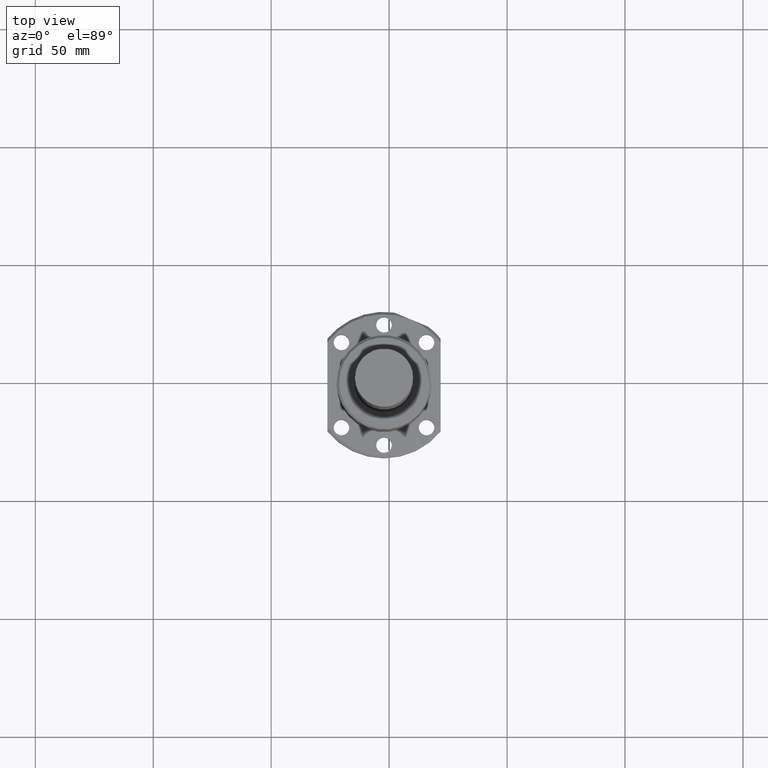
[diagram: clean part render]
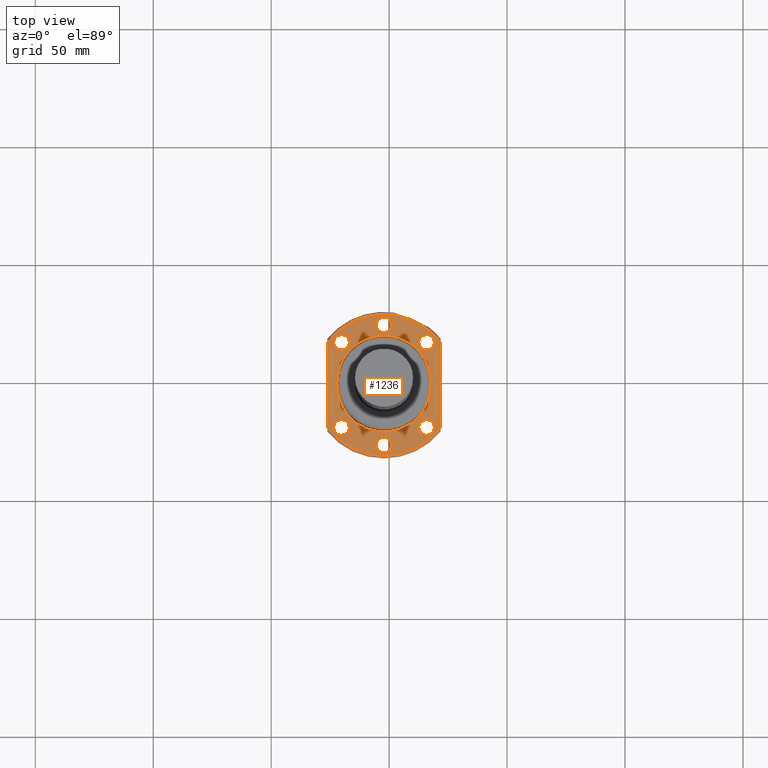
[diagram: same view with one face highlighted and labeled with its STEP entity id]
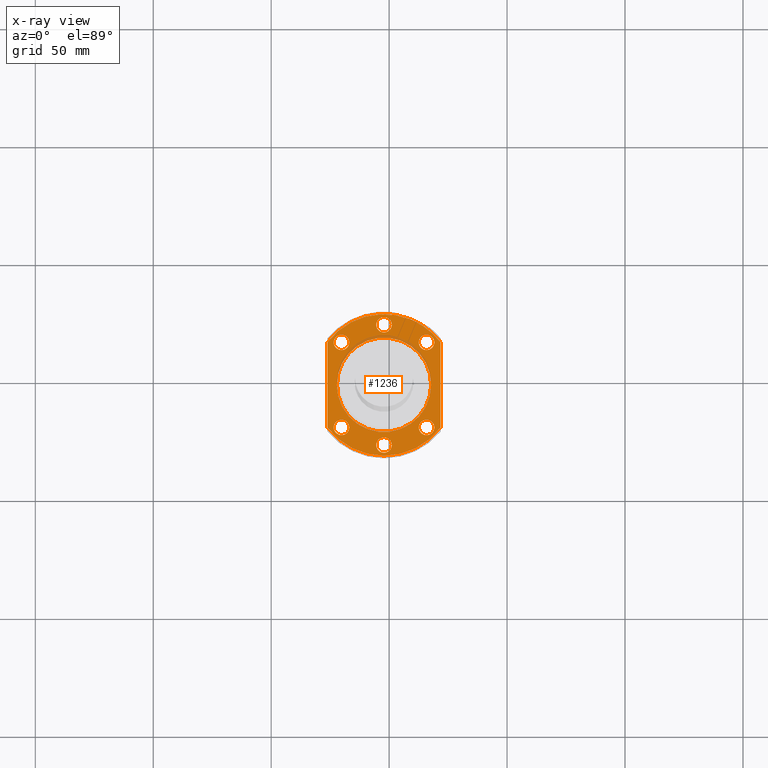
[diagram: x-ray of the same camera — body ghosted, the highlighted face saturated]
A machine part, top view. The second image highlights one B-rep face of the part: STEP entity #1236.
The next image is the same camera in x-ray: the body ghosted, the highlighted face saturated — about 4% of this face is hidden behind the body in this view.
In plain terms, the highlighted planar face has unit normal (0, 0, -1).
Its self-contained STEP definition (entity closure, byte-faithful):
#3 = EDGE_LOOP ( 'NONE', ( #971, #704 ) ) ;
#5 = DIRECTION ( 'NONE',  ( -0.0000000000000000000, 0.0000000000000000000, -1.000000000000000000 ) ) ;
#13 = EDGE_CURVE ( 'NONE', #1778, #966, #1190, .T. ) ;
#89 = AXIS2_PLACEMENT_3D ( 'NONE', #844, #840, #838 ) ;
#112 = FACE_OUTER_BOUND ( 'NONE', #1169, .T. ) ;
#116 = AXIS2_PLACEMENT_3D ( 'NONE', #518, #368, #695 ) ;
#121 = AXIS2_PLACEMENT_3D ( 'NONE', #1296, #1295, #1291 ) ;
#144 = EDGE_CURVE ( 'NONE', #391, #1743, #1106, .T. ) ;
#150 = EDGE_LOOP ( 'NONE', ( #1475, #442 ) ) ;
#152 = AXIS2_PLACEMENT_3D ( 'NONE', #1693, #1692, #1690 ) ;
#153 = FACE_BOUND ( 'NONE', #357, .T. ) ;
#200 = FACE_BOUND ( 'NONE', #542, .T. ) ;
#241 = ORIENTED_EDGE ( 'NONE', *, *, #1807, .F. ) ;
#255 = DIRECTION ( 'NONE',  ( 1.000000000000000000, 0.0000000000000000000, 0.0000000000000000000 ) ) ;
#260 = AXIS2_PLACEMENT_3D ( 'NONE', #867, #859, #853 ) ;
#279 = FACE_BOUND ( 'NONE', #793, .T. ) ;
#299 = EDGE_CURVE ( 'NONE', #1491, #596, #1075, .T. ) ;
#324 = DIRECTION ( 'NONE',  ( -0.0000000000000000000, 0.0000000000000000000, -1.000000000000000000 ) ) ;
#327 = AXIS2_PLACEMENT_3D ( 'NONE', #1160, #1156, #1154 ) ;
#340 = AXIS2_PLACEMENT_3D ( 'NONE', #1596, #5, #1070 ) ;
#354 = VECTOR ( 'NONE', #1013, 1000.000000000000000 ) ;
#357 = EDGE_LOOP ( 'NONE', ( #486, #1051 ) ) ;
#364 = FACE_BOUND ( 'NONE', #3, .T. ) ;
#368 = DIRECTION ( 'NONE',  ( -0.0000000000000000000, 0.0000000000000000000, -1.000000000000000000 ) ) ;
#380 = EDGE_CURVE ( 'NONE', #1526, #1243, #1072, .T. ) ;
#391 = VERTEX_POINT ( 'NONE', #1652 ) ;
#393 = AXIS2_PLACEMENT_3D ( 'NONE', #495, #494, #491 ) ;
#412 = EDGE_CURVE ( 'NONE', #1697, #947, #1097, .T. ) ;
#435 = FACE_BOUND ( 'NONE', #1633, .T. ) ;
#440 = VERTEX_POINT ( 'NONE', #1809 ) ;
#442 = ORIENTED_EDGE ( 'NONE', *, *, #299, .F. ) ;
#459 = CARTESIAN_POINT ( 'NONE',  ( 24.00000000000000000, 17.99999966708705300, -15.99999399974776700 ) ) ;
#465 = VERTEX_POINT ( 'NONE', #1802 ) ;
#471 = CARTESIAN_POINT ( 'NONE',  ( -21.33119279000001000, 18.03121900000000000, -15.99999400000000300 ) ) ;
#486 = ORIENTED_EDGE ( 'NONE', *, *, #380, .F. ) ;
#491 = DIRECTION ( 'NONE',  ( 1.000000000000000000, 0.0000000000000000000, 0.0000000000000000000 ) ) ;
#494 = DIRECTION ( 'NONE',  ( -0.0000000000000000000, 0.0000000000000000000, -1.000000000000000000 ) ) ;
#495 = CARTESIAN_POINT ( 'NONE',  ( -18.03120500000000300, -18.03122000000000100, -15.99999400000000300 ) ) ;
#500 = ORIENTED_EDGE ( 'NONE', *, *, #1028, .T. ) ;
#510 = FACE_BOUND ( 'NONE', #150, .T. ) ;
#518 = CARTESIAN_POINT ( 'NONE',  ( 0.0000000000000000000, 0.0000000000000000000, -15.99999399999996200 ) ) ;
#525 = CARTESIAN_POINT ( 'NONE',  ( -23.99999999999999600, 17.99999966666669600, -15.99999399999998300 ) ) ;
#526 = EDGE_CURVE ( 'NONE', #1743, #391, #995, .T. ) ;
#532 = CIRCLE ( 'NONE', #393, 3.299987790000005200 ) ;
#541 = ORIENTED_EDGE ( 'NONE', *, *, #1362, .F. ) ;
#542 = EDGE_LOOP ( 'NONE', ( #1087, #569 ) ) ;
#543 = CARTESIAN_POINT ( 'NONE',  ( -14.73121720999999900, -18.03122000000000100, -15.99999400000000300 ) ) ;
#545 = CIRCLE ( 'NONE', #893, 3.299987790000005200 ) ;
#562 = ORIENTED_EDGE ( 'NONE', *, *, #1326, .F. ) ;
#567 = CARTESIAN_POINT ( 'NONE',  ( 18.03123450000000000, -18.03122000000000100, -15.99999400000000300 ) ) ;
#569 = ORIENTED_EDGE ( 'NONE', *, *, #1511, .F. ) ;
#576 = CARTESIAN_POINT ( 'NONE',  ( 19.99999610000000100, 0.0000000000000000000, -15.99999400000000300 ) ) ;
#581 = DIRECTION ( 'NONE',  ( 1.000000000000000000, 0.0000000000000000000, 0.0000000000000000000 ) ) ;
#582 = DIRECTION ( 'NONE',  ( -0.0000000000000000000, 0.0000000000000000000, -1.000000000000000000 ) ) ;
#588 = CIRCLE ( 'NONE', #968, 3.299987789999999900 ) ;
#596 = VERTEX_POINT ( 'NONE', #1744 ) ;
#603 = FACE_BOUND ( 'NONE', #1158, .T. ) ;
#640 = DIRECTION ( 'NONE',  ( 1.000000000000000000, 0.0000000000000000000, 0.0000000000000000000 ) ) ;
#653 = EDGE_CURVE ( 'NONE', #1243, #1526, #990, .T. ) ;
#660 = EDGE_CURVE ( 'NONE', #738, #1762, #1066, .T. ) ;
#662 = CARTESIAN_POINT ( 'NONE',  ( -3.299972790000000000, 25.50000000000000400, -15.99999400000000300 ) ) ;
#672 = CIRCLE ( 'NONE', #1240, 3.299987790000000300 ) ;
#675 = CIRCLE ( 'NONE', #89, 3.299987790000005200 ) ;
#683 = CIRCLE ( 'NONE', #260, 3.300003049999999900 ) ;
#695 = DIRECTION ( 'NONE',  ( 1.000000000000000000, 0.0000000000000000000, 0.0000000000000000000 ) ) ;
#704 = ORIENTED_EDGE ( 'NONE', *, *, #1521, .F. ) ;
#723 = DIRECTION ( 'NONE',  ( 1.000000000000000000, 0.0000000000000000000, 0.0000000000000000000 ) ) ;
#726 = DIRECTION ( 'NONE',  ( -0.0000000000000000000, -0.0000000000000000000, -1.000000000000000000 ) ) ;
#736 = CARTESIAN_POINT ( 'NONE',  ( 1.499999999991091800E-005, 25.50000000000000400, -15.99999400000000300 ) ) ;
#738 = VERTEX_POINT ( 'NONE', #1675 ) ;
#773 = CARTESIAN_POINT ( 'NONE',  ( 0.0000000000000000000, 0.0000000000000000000, -15.99999400000000300 ) ) ;
#783 = DIRECTION ( 'NONE',  ( 1.000000000000000000, 0.0000000000000000000, 0.0000000000000000000 ) ) ;
#785 = DIRECTION ( 'NONE',  ( -0.0000000000000000000, 0.0000000000000000000, -1.000000000000000000 ) ) ;
#787 = CARTESIAN_POINT ( 'NONE',  ( 18.03123450000000000, 18.03121900000000000, -15.99999400000000300 ) ) ;
#793 = EDGE_LOOP ( 'NONE', ( #241, #1293 ) ) ;
#803 = VERTEX_POINT ( 'NONE', #1626 ) ;
#812 = VERTEX_POINT ( 'NONE', #1623 ) ;
#831 = AXIS2_PLACEMENT_3D ( 'NONE', #1757, #1755, #1752 ) ;
#838 = DIRECTION ( 'NONE',  ( 1.000000000000000000, 0.0000000000000000000, 0.0000000000000000000 ) ) ;
#840 = DIRECTION ( 'NONE',  ( -0.0000000000000000000, 0.0000000000000000000, -1.000000000000000000 ) ) ;
#844 = CARTESIAN_POINT ( 'NONE',  ( -18.03120500000000300, 18.03121900000000000, -15.99999400000000300 ) ) ;
#851 = CIRCLE ( 'NONE', #1696, 29.99999980000003700 ) ;
#853 = DIRECTION ( 'NONE',  ( 1.000000000000000000, 0.0000000000000000000, 0.0000000000000000000 ) ) ;
#856 = ORIENTED_EDGE ( 'NONE', *, *, #13, .T. ) ;
#859 = DIRECTION ( 'NONE',  ( -0.0000000000000000000, -0.0000000000000000000, -1.000000000000000000 ) ) ;
#867 = CARTESIAN_POINT ( 'NONE',  ( 0.0000000000000000000, -25.50000000000000400, -15.99999400000000300 ) ) ;
#876 = CARTESIAN_POINT ( 'NONE',  ( 14.73124670999999900, 18.03121900000000000, -15.99999400000000300 ) ) ;
#893 = AXIS2_PLACEMENT_3D ( 'NONE', #1589, #582, #581 ) ;
#945 = VECTOR ( 'NONE', #1036, 1000.000000000000000 ) ;
#946 = CIRCLE ( 'NONE', #1837, 29.99999980000003700 ) ;
#947 = VERTEX_POINT ( 'NONE', #1453 ) ;
#954 = CIRCLE ( 'NONE', #121, 3.300003049999999900 ) ;
#966 = VERTEX_POINT ( 'NONE', #1448 ) ;
#968 = AXIS2_PLACEMENT_3D ( 'NONE', #736, #726, #723 ) ;
#971 = ORIENTED_EDGE ( 'NONE', *, *, #1740, .F. ) ;
#990 = CIRCLE ( 'NONE', #152, 3.299987790000000300 ) ;
#995 = CIRCLE ( 'NONE', #831, 19.99999610000000100 ) ;
#1013 = DIRECTION ( 'NONE',  ( 0.0000000000000000000, 1.000000000000000000, 0.0000000000000000000 ) ) ;
#1014 = CARTESIAN_POINT ( 'NONE',  ( 24.00000000000000000, 0.0000000000000000000, -15.99999399999999900 ) ) ;
#1017 = LINE ( 'NONE', #1014, #354 ) ;
#1028 = EDGE_CURVE ( 'NONE', #966, #1586, #946, .T. ) ;
#1036 = DIRECTION ( 'NONE',  ( 0.0000000000000000000, -1.000000000000000000, 0.0000000000000000000 ) ) ;
#1038 = CARTESIAN_POINT ( 'NONE',  ( -24.00000000000000000, 0.0000000000000000000, -15.99999399999999900 ) ) ;
#1040 = LINE ( 'NONE', #1038, #945 ) ;
#1041 = ORIENTED_EDGE ( 'NONE', *, *, #1606, .F. ) ;
#1051 = ORIENTED_EDGE ( 'NONE', *, *, #653, .F. ) ;
#1058 = DIRECTION ( 'NONE',  ( -0.0000000000000000000, 0.0000000000000000000, -1.000000000000000000 ) ) ;
#1066 = CIRCLE ( 'NONE', #1509, 3.299987790000005200 ) ;
#1070 = DIRECTION ( 'NONE',  ( 1.000000000000000000, 0.0000000000000000000, 0.0000000000000000000 ) ) ;
#1072 = CIRCLE ( 'NONE', #1110, 3.299987790000000300 ) ;
#1075 = CIRCLE ( 'NONE', #340, 3.299987790000000300 ) ;
#1087 = ORIENTED_EDGE ( 'NONE', *, *, #1166, .F. ) ;
#1095 = ORIENTED_EDGE ( 'NONE', *, *, #412, .F. ) ;
#1097 = CIRCLE ( 'NONE', #1774, 3.299987789999999900 ) ;
#1104 = ORIENTED_EDGE ( 'NONE', *, *, #1207, .F. ) ;
#1106 = CIRCLE ( 'NONE', #1756, 19.99999610000000100 ) ;
#1110 = AXIS2_PLACEMENT_3D ( 'NONE', #567, #1058, #255 ) ;
#1139 = VERTEX_POINT ( 'NONE', #1459 ) ;
#1145 = CARTESIAN_POINT ( 'NONE',  ( 14.73124670999999900, -18.03122000000000100, -15.99999400000000300 ) ) ;
#1154 = DIRECTION ( 'NONE',  ( 1.000000000000000000, 0.0000000000000000000, 0.0000000000000000000 ) ) ;
#1156 = DIRECTION ( 'NONE',  ( 0.0000000000000000000, 0.0000000000000000000, 1.000000000000000000 ) ) ;
#1158 = EDGE_LOOP ( 'NONE', ( #1591, #1614 ) ) ;
#1160 = CARTESIAN_POINT ( 'NONE',  ( -24.00000000000000000, -30.35999979800000400, -15.99999399999999900 ) ) ;
#1165 = CARTESIAN_POINT ( 'NONE',  ( 21.33122228999999900, -18.03122000000000100, -15.99999400000000300 ) ) ;
#1166 = EDGE_CURVE ( 'NONE', #440, #1139, #954, .T. ) ;
#1169 = EDGE_LOOP ( 'NONE', ( #1104, #562, #856, #500, #541 ) ) ;
#1172 = PLANE ( 'NONE',  #327 ) ;
#1190 = CIRCLE ( 'NONE', #116, 29.99999980000003700 ) ;
#1207 = EDGE_CURVE ( 'NONE', #465, #812, #851, .T. ) ;
#1221 = DIRECTION ( 'NONE',  ( 1.000000000000000000, 0.0000000000000000000, 0.0000000000000000000 ) ) ;
#1222 = DIRECTION ( 'NONE',  ( 0.0000000000000000000, -0.0000000000000000000, 1.000000000000000000 ) ) ;
#1227 = CARTESIAN_POINT ( 'NONE',  ( 0.0000000000000000000, 0.0000000000000000000, -15.99999399999996200 ) ) ;
#1236 = ADVANCED_FACE ( 'NONE', ( #603, #510, #435, #364, #279, #200, #153, #112 ), #1172, .F. ) ;
#1240 = AXIS2_PLACEMENT_3D ( 'NONE', #787, #785, #783 ) ;
#1243 = VERTEX_POINT ( 'NONE', #1145 ) ;
#1291 = DIRECTION ( 'NONE',  ( 1.000000000000000000, 0.0000000000000000000, 0.0000000000000000000 ) ) ;
#1293 = ORIENTED_EDGE ( 'NONE', *, *, #660, .F. ) ;
#1295 = DIRECTION ( 'NONE',  ( -0.0000000000000000000, -0.0000000000000000000, -1.000000000000000000 ) ) ;
#1296 = CARTESIAN_POINT ( 'NONE',  ( 0.0000000000000000000, -25.50000000000000400, -15.99999400000000300 ) ) ;
#1326 = EDGE_CURVE ( 'NONE', #1778, #465, #1040, .T. ) ;
#1362 = EDGE_CURVE ( 'NONE', #812, #1586, #1017, .T. ) ;
#1392 = DIRECTION ( 'NONE',  ( 1.000000000000000000, -1.776356839400250500E-015, 0.0000000000000000000 ) ) ;
#1395 = DIRECTION ( 'NONE',  ( -0.0000000000000000000, 0.0000000000000000000, -1.000000000000000000 ) ) ;
#1397 = CARTESIAN_POINT ( 'NONE',  ( 0.0000000000000000000, 0.0000000000000000000, -15.99999399999996200 ) ) ;
#1448 = CARTESIAN_POINT ( 'NONE',  ( -11.48050294420043300, 27.71638587827104800, -15.99999389991637400 ) ) ;
#1453 = CARTESIAN_POINT ( 'NONE',  ( 3.300002789999999700, 25.50000000000000400, -15.99999400000000300 ) ) ;
#1459 = CARTESIAN_POINT ( 'NONE',  ( -3.300003049999999900, -25.50000000000000400, -15.99999400000000300 ) ) ;
#1475 = ORIENTED_EDGE ( 'NONE', *, *, #1550, .F. ) ;
#1491 = VERTEX_POINT ( 'NONE', #876 ) ;
#1509 = AXIS2_PLACEMENT_3D ( 'NONE', #1689, #1687, #1685 ) ;
#1511 = EDGE_CURVE ( 'NONE', #1139, #440, #683, .T. ) ;
#1521 = EDGE_CURVE ( 'NONE', #1830, #803, #675, .T. ) ;
#1526 = VERTEX_POINT ( 'NONE', #1165 ) ;
#1550 = EDGE_CURVE ( 'NONE', #596, #1491, #672, .T. ) ;
#1586 = VERTEX_POINT ( 'NONE', #459 ) ;
#1589 = CARTESIAN_POINT ( 'NONE',  ( -18.03120500000000300, 18.03121900000000000, -15.99999400000000300 ) ) ;
#1591 = ORIENTED_EDGE ( 'NONE', *, *, #526, .F. ) ;
#1596 = CARTESIAN_POINT ( 'NONE',  ( 18.03123450000000000, 18.03121900000000000, -15.99999400000000300 ) ) ;
#1606 = EDGE_CURVE ( 'NONE', #947, #1697, #588, .T. ) ;
#1614 = ORIENTED_EDGE ( 'NONE', *, *, #144, .F. ) ;
#1623 = CARTESIAN_POINT ( 'NONE',  ( 23.99999999999999600, -17.99999966778961600, -15.99999399932622700 ) ) ;
#1626 = CARTESIAN_POINT ( 'NONE',  ( -14.73121720999999900, 18.03121900000000000, -15.99999400000000300 ) ) ;
#1633 = EDGE_LOOP ( 'NONE', ( #1041, #1095 ) ) ;
#1652 = CARTESIAN_POINT ( 'NONE',  ( -19.99999610000000100, 2.449293120682454800E-015, -15.99999400000000300 ) ) ;
#1675 = CARTESIAN_POINT ( 'NONE',  ( -21.33119279000001000, -18.03122000000000100, -15.99999400000000300 ) ) ;
#1685 = DIRECTION ( 'NONE',  ( 1.000000000000000000, 0.0000000000000000000, 0.0000000000000000000 ) ) ;
#1687 = DIRECTION ( 'NONE',  ( -0.0000000000000000000, 0.0000000000000000000, -1.000000000000000000 ) ) ;
#1689 = CARTESIAN_POINT ( 'NONE',  ( -18.03120500000000300, -18.03122000000000100, -15.99999400000000300 ) ) ;
#1690 = DIRECTION ( 'NONE',  ( 1.000000000000000000, 0.0000000000000000000, 0.0000000000000000000 ) ) ;
#1692 = DIRECTION ( 'NONE',  ( -0.0000000000000000000, 0.0000000000000000000, -1.000000000000000000 ) ) ;
#1693 = CARTESIAN_POINT ( 'NONE',  ( 18.03123450000000000, -18.03122000000000100, -15.99999400000000300 ) ) ;
#1696 = AXIS2_PLACEMENT_3D ( 'NONE', #1227, #1222, #1221 ) ;
#1697 = VERTEX_POINT ( 'NONE', #662 ) ;
#1740 = EDGE_CURVE ( 'NONE', #803, #1830, #545, .T. ) ;
#1743 = VERTEX_POINT ( 'NONE', #576 ) ;
#1744 = CARTESIAN_POINT ( 'NONE',  ( 21.33122228999999900, 18.03121900000000000, -15.99999400000000300 ) ) ;
#1752 = DIRECTION ( 'NONE',  ( 1.000000000000000000, 0.0000000000000000000, 0.0000000000000000000 ) ) ;
#1755 = DIRECTION ( 'NONE',  ( -0.0000000000000000000, 0.0000000000000000000, -1.000000000000000000 ) ) ;
#1756 = AXIS2_PLACEMENT_3D ( 'NONE', #773, #324, #640 ) ;
#1757 = CARTESIAN_POINT ( 'NONE',  ( 0.0000000000000000000, 0.0000000000000000000, -15.99999400000000300 ) ) ;
#1762 = VERTEX_POINT ( 'NONE', #543 ) ;
#1774 = AXIS2_PLACEMENT_3D ( 'NONE', #1817, #1813, #1810 ) ;
#1778 = VERTEX_POINT ( 'NONE', #525 ) ;
#1802 = CARTESIAN_POINT ( 'NONE',  ( -23.99999999999999600, -17.99999966666669200, -15.99999399999998300 ) ) ;
#1807 = EDGE_CURVE ( 'NONE', #1762, #738, #532, .T. ) ;
#1809 = CARTESIAN_POINT ( 'NONE',  ( 3.300003049999999900, -25.50000000000000400, -15.99999400000000300 ) ) ;
#1810 = DIRECTION ( 'NONE',  ( 1.000000000000000000, 0.0000000000000000000, 0.0000000000000000000 ) ) ;
#1813 = DIRECTION ( 'NONE',  ( -0.0000000000000000000, -0.0000000000000000000, -1.000000000000000000 ) ) ;
#1817 = CARTESIAN_POINT ( 'NONE',  ( 1.499999999991091800E-005, 25.50000000000000400, -15.99999400000000300 ) ) ;
#1830 = VERTEX_POINT ( 'NONE', #471 ) ;
#1837 = AXIS2_PLACEMENT_3D ( 'NONE', #1397, #1395, #1392 ) ;